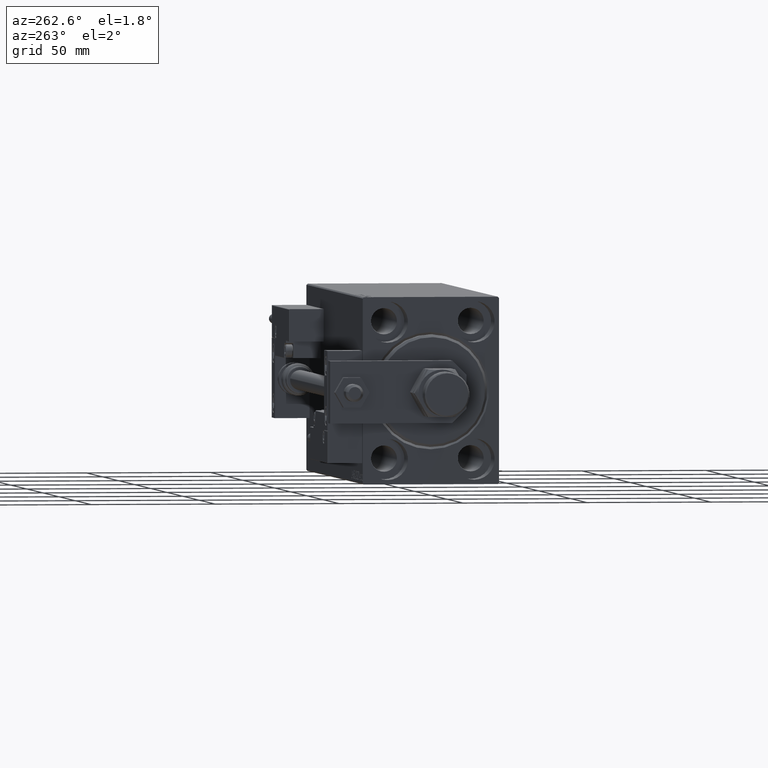
[diagram: clean part render]
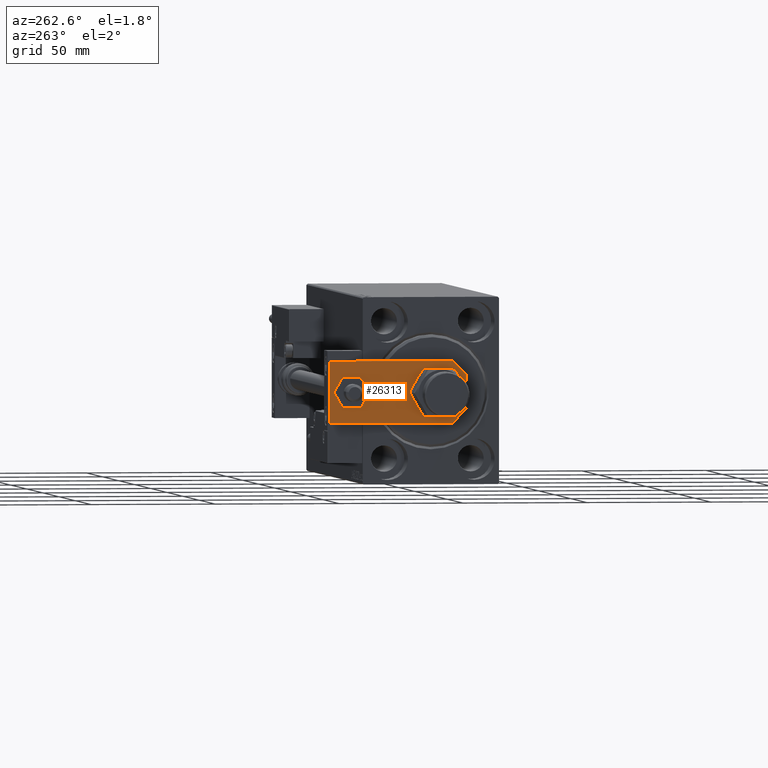
[diagram: same view with one face highlighted and labeled with its STEP entity id]
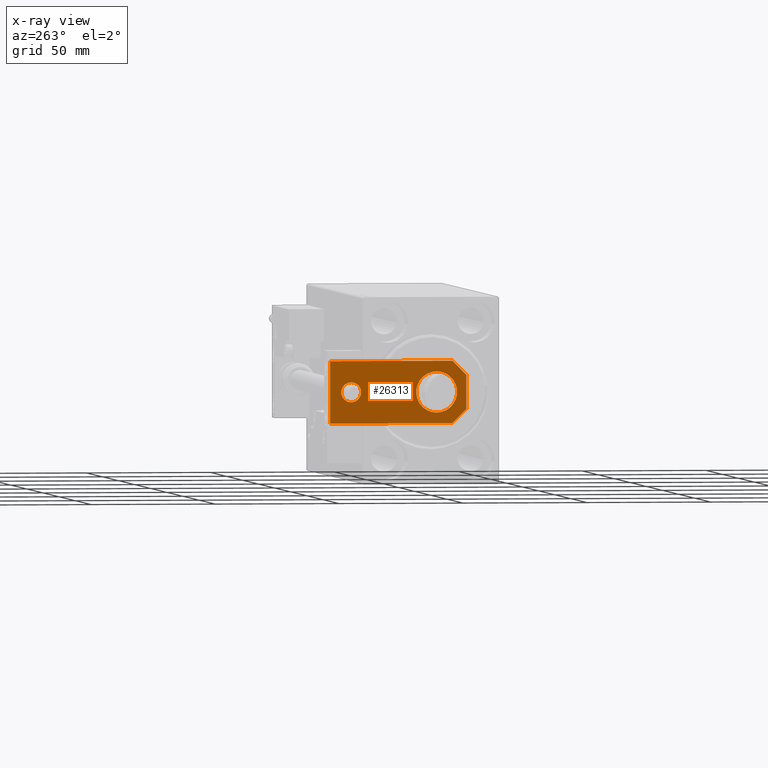
[diagram: x-ray of the same camera — body ghosted, the highlighted face saturated]
A machine part, auxiliary view. The second image highlights one B-rep face of the part: STEP entity #26313.
The next image is the same camera in x-ray: the body ghosted, the highlighted face saturated — about 0% of this face is hidden behind the body in this view.
In plain terms, the highlighted planar face has unit normal (-1, 0, 0).
Its self-contained STEP definition (entity closure, byte-faithful):
#2600 = CARTESIAN_POINT ( 'NONE',  ( 0.000000000000000000, 0.000000000000000000, 6.000000000000000000 ) ) ;
#3114 = CARTESIAN_POINT ( 'NONE',  ( -6.840000000000012292, 4.814824860968089633E-32, 6.000000000000000000 ) ) ;
#3214 = CARTESIAN_POINT ( 'NONE',  ( 3.419999999999990603, -3.419999999999999485, 6.000000000000000000 ) ) ;
#3729 = AXIS2_PLACEMENT_3D ( 'NONE', #9868, #25770, #37782 ) ;
#4000 = DIRECTION ( 'NONE',  ( 1.000000000000000000, 0.000000000000000000, 0.000000000000000000 ) ) ;
#5253 = DIRECTION ( 'NONE',  ( 0.7071067811865467956, -0.7071067811865483499, 0.000000000000000000 ) ) ;
#6509 = CARTESIAN_POINT ( 'NONE',  ( -4.000000000000000888, 46.50000000000000000, 6.000000000000000000 ) ) ;
#6560 = CARTESIAN_POINT ( 'NONE',  ( 4.000000000000000888, 46.50000000000000000, 6.000000000000000000 ) ) ;
#6856 = DIRECTION ( 'NONE',  ( 0.000000000000000000, 0.000000000000000000, 1.000000000000000000 ) ) ;
#7292 = VERTEX_POINT ( 'NONE', #15804 ) ;
#7336 = CARTESIAN_POINT ( 'NONE',  ( 12.50000000000000355, 4.814824860968089633E-32, 6.000000000000000000 ) ) ;
#7776 = CIRCLE ( 'NONE', #14434, 8.250000000000000000 ) ;
#7987 = ORIENTED_EDGE ( 'NONE', *, *, #16882, .T. ) ;
#9457 = LINE ( 'NONE', #37366, #11081 ) ;
#9868 = CARTESIAN_POINT ( 'NONE',  ( -9.629649721936179265E-32, 11.99999999999999645, 6.000000000000000000 ) ) ;
#9918 = FACE_OUTER_BOUND ( 'NONE', #25264, .T. ) ;
#10459 = CARTESIAN_POINT ( 'NONE',  ( -9.629649721936179265E-32, 11.99999999999999645, 6.000000000000000000 ) ) ;
#11081 = VECTOR ( 'NONE', #21176, 1000.000000000000000 ) ;
#11186 = CARTESIAN_POINT ( 'NONE',  ( 12.50000000000000000, 55.00000000000000000, 6.000000000000000000 ) ) ;
#12023 = LINE ( 'NONE', #7336, #43423 ) ;
#12773 = DIRECTION ( 'NONE',  ( -9.462128050782584375E-17, -1.000000000000000000, 0.000000000000000000 ) ) ;
#14161 = VERTEX_POINT ( 'NONE', #11186 ) ;
#14354 = VERTEX_POINT ( 'NONE', #42208 ) ;
#14434 = AXIS2_PLACEMENT_3D ( 'NONE', #10459, #22683, #49850 ) ;
#14893 = EDGE_CURVE ( 'NONE', #18237, #42763, #25702, .T. ) ;
#15106 = VECTOR ( 'NONE', #5253, 1000.000000000000000 ) ;
#15580 = CARTESIAN_POINT ( 'NONE',  ( 8.250000000000000000, 11.99999999999999822, 6.000000000000000000 ) ) ;
#15804 = CARTESIAN_POINT ( 'NONE',  ( -12.50000000000000355, 5.660000000000005471, 6.000000000000000000 ) ) ;
#16882 = EDGE_CURVE ( 'NONE', #17295, #51575, #34276, .T. ) ;
#17295 = VERTEX_POINT ( 'NONE', #3114 ) ;
#17354 = VERTEX_POINT ( 'NONE', #19533 ) ;
#17514 = CARTESIAN_POINT ( 'NONE',  ( -3.420000000000013696, -3.420000000000006146, 6.000000000000000000 ) ) ;
#18237 = VERTEX_POINT ( 'NONE', #6560 ) ;
#18348 = DIRECTION ( 'NONE',  ( 1.000000000000000000, 0.000000000000000000, 0.000000000000000000 ) ) ;
#18429 = CIRCLE ( 'NONE', #38420, 4.000000000000000888 ) ;
#19533 = CARTESIAN_POINT ( 'NONE',  ( -8.250000000000000000, 11.99999999999999645, 6.000000000000000000 ) ) ;
#20123 = CARTESIAN_POINT ( 'NONE',  ( 6.839999999999998970, 4.814824860968089633E-32, 6.000000000000000000 ) ) ;
#21176 = DIRECTION ( 'NONE',  ( -1.000000000000000000, 0.000000000000000000, 0.000000000000000000 ) ) ;
#21638 = FACE_BOUND ( 'NONE', #25838, .T. ) ;
#22409 = DIRECTION ( 'NONE',  ( 1.000000000000000000, 0.000000000000000000, 0.000000000000000000 ) ) ;
#22652 = ORIENTED_EDGE ( 'NONE', *, *, #24784, .F. ) ;
#22683 = DIRECTION ( 'NONE',  ( 0.000000000000000000, 0.000000000000000000, 1.000000000000000000 ) ) ;
#23152 = ORIENTED_EDGE ( 'NONE', *, *, #35682, .T. ) ;
#23786 = VERTEX_POINT ( 'NONE', #15580 ) ;
#23816 = VECTOR ( 'NONE', #12773, 1000.000000000000000 ) ;
#24784 = EDGE_CURVE ( 'NONE', #42763, #18237, #18429, .T. ) ;
#25264 = EDGE_LOOP ( 'NONE', ( #32380, #46164, #7987, #23152, #26043, #34379 ) ) ;
#25702 = CIRCLE ( 'NONE', #49878, 4.000000000000000888 ) ;
#25770 = DIRECTION ( 'NONE',  ( 0.000000000000000000, 0.000000000000000000, 1.000000000000000000 ) ) ;
#25838 = EDGE_LOOP ( 'NONE', ( #22652, #28626 ) ) ;
#26043 = ORIENTED_EDGE ( 'NONE', *, *, #42393, .T. ) ;
#26174 = VECTOR ( 'NONE', #38954, 1000.000000000000114 ) ;
#26218 = CIRCLE ( 'NONE', #3729, 8.250000000000000000 ) ;
#26313 = ADVANCED_FACE ( 'NONE', ( #21638, #9918, #49298 ), #37567, .T. ) ;
#28626 = ORIENTED_EDGE ( 'NONE', *, *, #14893, .F. ) ;
#29004 = EDGE_CURVE ( 'NONE', #14161, #51555, #9457, .T. ) ;
#30635 = EDGE_CURVE ( 'NONE', #23786, #17354, #7776, .T. ) ;
#32380 = ORIENTED_EDGE ( 'NONE', *, *, #39166, .T. ) ;
#32424 = VECTOR ( 'NONE', #34027, 1000.000000000000000 ) ;
#34027 = DIRECTION ( 'NONE',  ( 1.000000000000000000, 0.000000000000000000, 0.000000000000000000 ) ) ;
#34031 = CARTESIAN_POINT ( 'NONE',  ( -1.432611055310774642E-16, 46.50000000000000000, 6.000000000000000000 ) ) ;
#34167 = DIRECTION ( 'NONE',  ( -0.000000000000000000, 0.000000000000000000, 1.000000000000000000 ) ) ;
#34276 = LINE ( 'NONE', #37960, #32424 ) ;
#34379 = ORIENTED_EDGE ( 'NONE', *, *, #29004, .T. ) ;
#34396 = ORIENTED_EDGE ( 'NONE', *, *, #30635, .F. ) ;
#35682 = EDGE_CURVE ( 'NONE', #51575, #14354, #42883, .T. ) ;
#36030 = EDGE_LOOP ( 'NONE', ( #40607, #34396 ) ) ;
#36762 = CARTESIAN_POINT ( 'NONE',  ( -12.49999999999999822, 55.00000000000000000, 6.000000000000000000 ) ) ;
#37366 = CARTESIAN_POINT ( 'NONE',  ( 12.50000000000000000, 55.00000000000000000, 6.000000000000000000 ) ) ;
#37567 = PLANE ( 'NONE',  #40144 ) ;
#37782 = DIRECTION ( 'NONE',  ( 1.000000000000000000, 0.000000000000000000, 0.000000000000000000 ) ) ;
#37960 = CARTESIAN_POINT ( 'NONE',  ( -12.50000000000000355, 4.814824860968089633E-32, 6.000000000000000000 ) ) ;
#38420 = AXIS2_PLACEMENT_3D ( 'NONE', #49930, #6856, #18348 ) ;
#38954 = DIRECTION ( 'NONE',  ( 0.7071067811865483499, 0.7071067811865465735, -0.000000000000000000 ) ) ;
#39166 = EDGE_CURVE ( 'NONE', #51555, #7292, #48529, .T. ) ;
#40144 = AXIS2_PLACEMENT_3D ( 'NONE', #2600, #34167, #22409 ) ;
#40607 = ORIENTED_EDGE ( 'NONE', *, *, #50715, .F. ) ;
#41001 = LINE ( 'NONE', #17514, #15106 ) ;
#42208 = CARTESIAN_POINT ( 'NONE',  ( 12.50000000000000355, 5.659999999999991260, 6.000000000000000000 ) ) ;
#42393 = EDGE_CURVE ( 'NONE', #14354, #14161, #12023, .T. ) ;
#42763 = VERTEX_POINT ( 'NONE', #6509 ) ;
#42883 = LINE ( 'NONE', #3214, #26174 ) ;
#43423 = VECTOR ( 'NONE', #43604, 1000.000000000000000 ) ;
#43604 = DIRECTION ( 'NONE',  ( -6.308085367188389994E-17, 1.000000000000000000, 0.000000000000000000 ) ) ;
#44533 = EDGE_CURVE ( 'NONE', #7292, #17295, #41001, .T. ) ;
#46164 = ORIENTED_EDGE ( 'NONE', *, *, #44533, .T. ) ;
#47312 = DIRECTION ( 'NONE',  ( 0.000000000000000000, 0.000000000000000000, 1.000000000000000000 ) ) ;
#47524 = CARTESIAN_POINT ( 'NONE',  ( -12.49999999999999822, 55.00000000000000000, 6.000000000000000000 ) ) ;
#48529 = LINE ( 'NONE', #36762, #23816 ) ;
#49298 = FACE_BOUND ( 'NONE', #36030, .T. ) ;
#49850 = DIRECTION ( 'NONE',  ( 1.000000000000000000, 0.000000000000000000, 0.000000000000000000 ) ) ;
#49878 = AXIS2_PLACEMENT_3D ( 'NONE', #34031, #47312, #4000 ) ;
#49930 = CARTESIAN_POINT ( 'NONE',  ( -1.432611055310774642E-16, 46.50000000000000000, 6.000000000000000000 ) ) ;
#50715 = EDGE_CURVE ( 'NONE', #17354, #23786, #26218, .T. ) ;
#51555 = VERTEX_POINT ( 'NONE', #47524 ) ;
#51575 = VERTEX_POINT ( 'NONE', #20123 ) ;